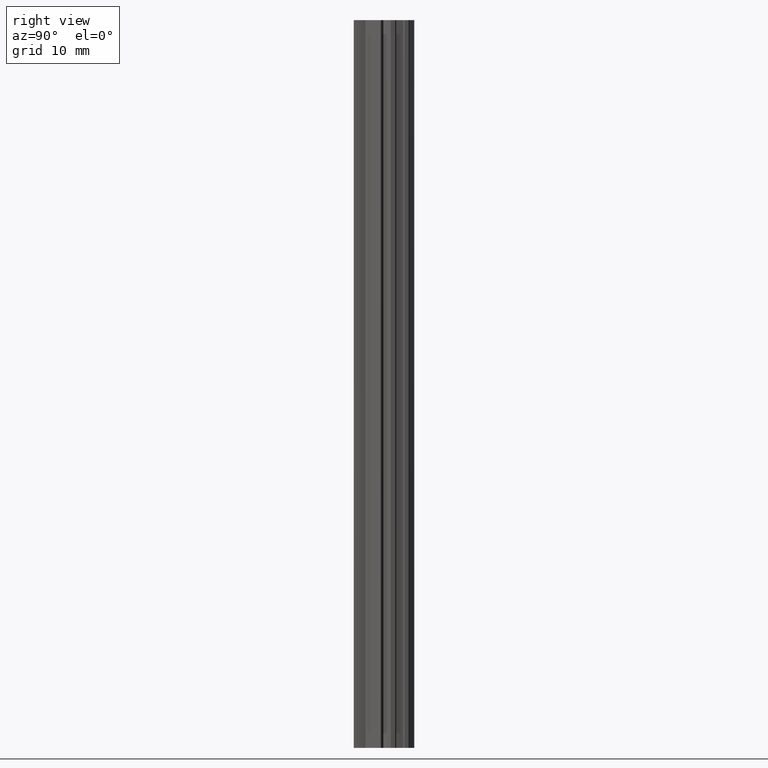
[diagram: clean part render]
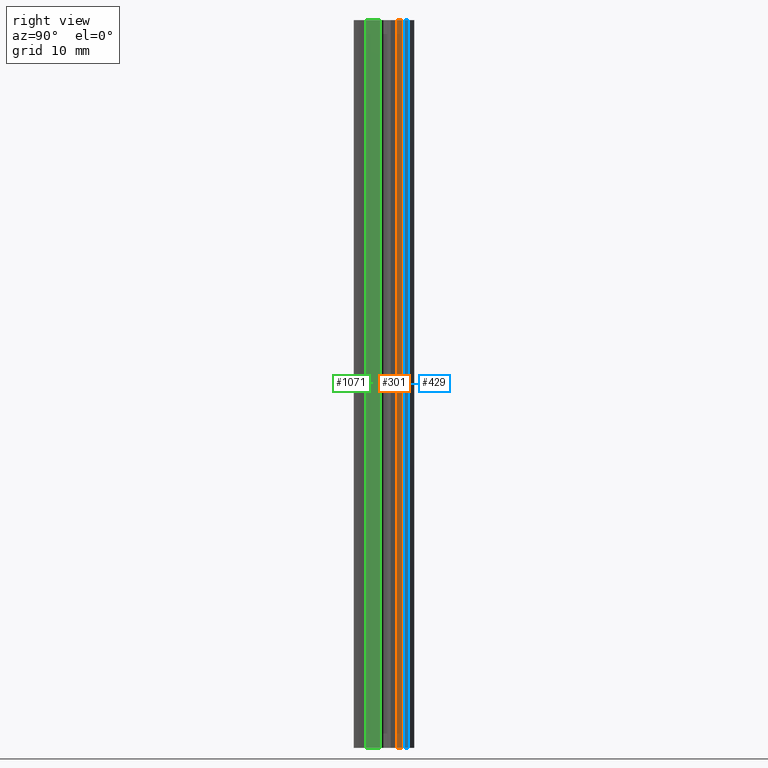
[diagram: same view with three faces highlighted in distinct colors, each labeled with its STEP entity id]
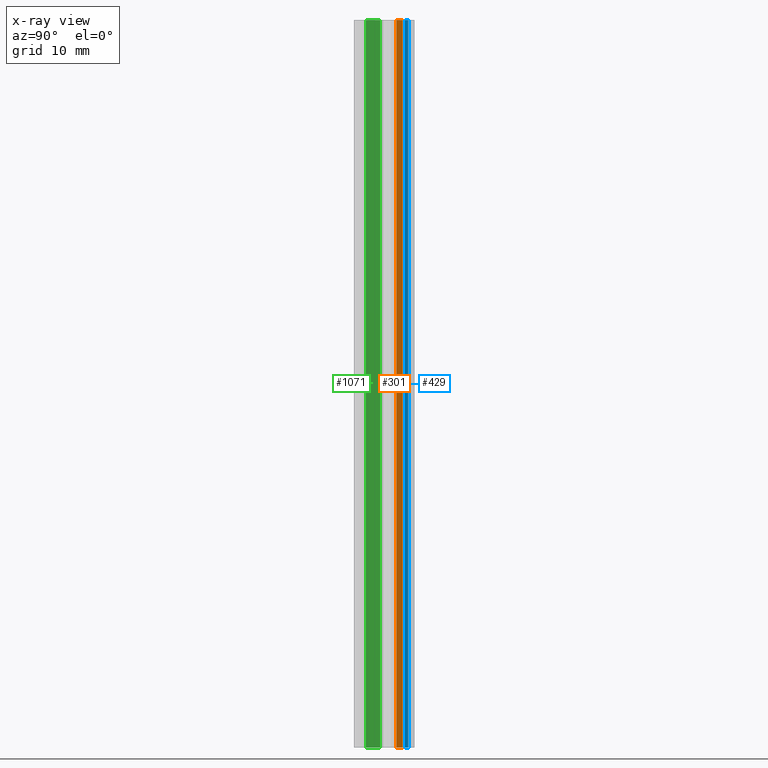
[diagram: x-ray of the same camera — body ghosted, the three highlighted faces saturated]
A machine part, right view with three faces highlighted in distinct colors.
The next image is the same camera in x-ray (body ghosted, the three faces saturated) — at least one of them is partly hidden behind the body in this view.
Their STEP definitions:

[orange] entity #301 — the highlighted planar face has unit normal (1, 0, 0).
#243=CARTESIAN_POINT('',(1.265119787783988,5.843102627997723,0.0));
#244=VERTEX_POINT('',#243);
#252=CARTESIAN_POINT('',(1.265119787783988,5.843102627997723,100.0));
#253=VERTEX_POINT('',#252);
#254=CARTESIAN_POINT('',(1.265119787783988,5.843102627997723,0.0));
#255=DIRECTION('',(0.0,0.0,1.0));
#256=VECTOR('',#255,100.0);
#257=LINE('',#254,#256);
#258=EDGE_CURVE('',#244,#253,#257,.T.);
#271=CARTESIAN_POINT('',(1.265119787783988,5.843102627997723,0.0));
#272=DIRECTION('',(1.0,0.0,0.0));
#273=DIRECTION('',(0.0,1.0,0.0));
#274=AXIS2_PLACEMENT_3D('',#271,#272,#273);
#275=PLANE('',#274);
#276=CARTESIAN_POINT('',(1.265119787783988,6.721160921344563,0.0));
#277=VERTEX_POINT('',#276);
#278=CARTESIAN_POINT('',(1.265119787783988,5.843102627997723,0.0));
#279=DIRECTION('',(0.0,1.0,0.0));
#280=VECTOR('',#279,0.878058293346944);
#281=LINE('',#278,#280);
#282=EDGE_CURVE('',#244,#277,#281,.T.);
#283=ORIENTED_EDGE('',*,*,#282,.T.);
#284=CARTESIAN_POINT('',(1.265119787783988,6.721160921344563,100.0));
#285=VERTEX_POINT('',#284);
#286=CARTESIAN_POINT('',(1.265119787783988,6.721160921344563,0.0));
#287=DIRECTION('',(0.0,0.0,1.0));
#288=VECTOR('',#287,100.0);
#289=LINE('',#286,#288);
#290=EDGE_CURVE('',#277,#285,#289,.T.);
#291=ORIENTED_EDGE('',*,*,#290,.T.);
#292=CARTESIAN_POINT('',(1.265119787783988,5.843102627997723,100.0));
#293=DIRECTION('',(0.0,1.0,0.0));
#294=VECTOR('',#293,0.878058293346944);
#295=LINE('',#292,#294);
#296=EDGE_CURVE('',#253,#285,#295,.T.);
#297=ORIENTED_EDGE('',*,*,#296,.F.);
#298=ORIENTED_EDGE('',*,*,#258,.F.);
#299=EDGE_LOOP('',(#283,#291,#297,#298));
#300=FACE_OUTER_BOUND('',#299,.T.);
#301=ADVANCED_FACE('',(#300),#275,.T.);

[blue] entity #429 — the highlighted planar face has unit normal (1, 0, 0).
#371=CARTESIAN_POINT('',(2.430806489880979,7.015799471370883,0.0));
#372=VERTEX_POINT('',#371);
#380=CARTESIAN_POINT('',(2.430806489880979,7.015799471370883,100.0));
#381=VERTEX_POINT('',#380);
#382=CARTESIAN_POINT('',(2.430806489880979,7.015799471370883,0.0));
#383=DIRECTION('',(0.0,0.0,1.0));
#384=VECTOR('',#383,100.0);
#385=LINE('',#382,#384);
#386=EDGE_CURVE('',#372,#381,#385,.T.);
#399=CARTESIAN_POINT('',(2.430806489880979,7.015799471370883,0.0));
#400=DIRECTION('',(1.0,0.0,0.0));
#401=DIRECTION('',(0.0,1.0,0.0));
#402=AXIS2_PLACEMENT_3D('',#399,#400,#401);
#403=PLANE('',#402);
#404=CARTESIAN_POINT('',(2.430806489880524,7.479009992664032,0.0));
#405=VERTEX_POINT('',#404);
#406=CARTESIAN_POINT('',(2.430806489880979,7.015799471370883,0.0));
#407=DIRECTION('',(0.0,1.0,0.0));
#408=VECTOR('',#407,0.463210521293123);
#409=LINE('',#406,#408);
#410=EDGE_CURVE('',#372,#405,#409,.T.);
#411=ORIENTED_EDGE('',*,*,#410,.T.);
#412=CARTESIAN_POINT('',(2.430806489880524,7.479009992664032,100.0));
#413=VERTEX_POINT('',#412);
#414=CARTESIAN_POINT('',(2.430806489880524,7.479009992664032,0.0));
#415=DIRECTION('',(0.0,0.0,1.0));
#416=VECTOR('',#415,100.0);
#417=LINE('',#414,#416);
#418=EDGE_CURVE('',#405,#413,#417,.T.);
#419=ORIENTED_EDGE('',*,*,#418,.T.);
#420=CARTESIAN_POINT('',(2.430806489880979,7.015799471370883,100.0));
#421=DIRECTION('',(0.0,1.0,0.0));
#422=VECTOR('',#421,0.463210521293123);
#423=LINE('',#420,#422);
#424=EDGE_CURVE('',#381,#413,#423,.T.);
#425=ORIENTED_EDGE('',*,*,#424,.F.);
#426=ORIENTED_EDGE('',*,*,#386,.F.);
#427=EDGE_LOOP('',(#411,#419,#425,#426));
#428=FACE_OUTER_BOUND('',#427,.T.);
#429=ADVANCED_FACE('',(#428),#403,.T.);

[green] entity #1071 — the highlighted planar face has unit normal (0.8431, -0.5377, 0).
#1013=CARTESIAN_POINT('',(0.207785931573198,1.631259423341362,0.0));
#1014=VERTEX_POINT('',#1013);
#1022=CARTESIAN_POINT('',(0.207785931573198,1.631259423341362,100.0));
#1023=VERTEX_POINT('',#1022);
#1024=CARTESIAN_POINT('',(0.207785931573198,1.631259423341362,0.0));
#1025=DIRECTION('',(0.0,0.0,1.0));
#1026=VECTOR('',#1025,100.0);
#1027=LINE('',#1024,#1026);
#1028=EDGE_CURVE('',#1014,#1023,#1027,.T.);
#1041=CARTESIAN_POINT('',(0.207785931573198,1.631259423341362,0.0));
#1042=DIRECTION('',(0.843145902326728,-0.537684840208134,0.0));
#1043=DIRECTION('',(0.537684840208134,0.843145902326728,0.0));
#1044=AXIS2_PLACEMENT_3D('',#1041,#1042,#1043);
#1045=PLANE('',#1044);
#1046=CARTESIAN_POINT('',(1.472074121411879,3.613795152282364,0.0));
#1047=VERTEX_POINT('',#1046);
#1048=CARTESIAN_POINT('',(0.207785931573278,1.631259423341622,0.0));
#1049=DIRECTION('',(0.537684840208161,0.843145902326712,0.0));
#1050=VECTOR('',#1049,2.351355469403120);
#1051=LINE('',#1048,#1050);
#1052=EDGE_CURVE('',#1014,#1047,#1051,.T.);
#1053=ORIENTED_EDGE('',*,*,#1052,.T.);
#1054=CARTESIAN_POINT('',(1.472074121411879,3.613795152282364,100.0));
#1055=VERTEX_POINT('',#1054);
#1056=CARTESIAN_POINT('',(1.472074121411879,3.613795152282364,0.0));
#1057=DIRECTION('',(0.0,0.0,1.0));
#1058=VECTOR('',#1057,100.0);
#1059=LINE('',#1056,#1058);
#1060=EDGE_CURVE('',#1047,#1055,#1059,.T.);
#1061=ORIENTED_EDGE('',*,*,#1060,.T.);
#1062=CARTESIAN_POINT('',(0.207785931573278,1.631259423341622,100.0));
#1063=DIRECTION('',(0.537684840208161,0.843145902326712,0.0));
#1064=VECTOR('',#1063,2.351355469403120);
#1065=LINE('',#1062,#1064);
#1066=EDGE_CURVE('',#1023,#1055,#1065,.T.);
#1067=ORIENTED_EDGE('',*,*,#1066,.F.);
#1068=ORIENTED_EDGE('',*,*,#1028,.F.);
#1069=EDGE_LOOP('',(#1053,#1061,#1067,#1068));
#1070=FACE_OUTER_BOUND('',#1069,.T.);
#1071=ADVANCED_FACE('',(#1070),#1045,.T.);